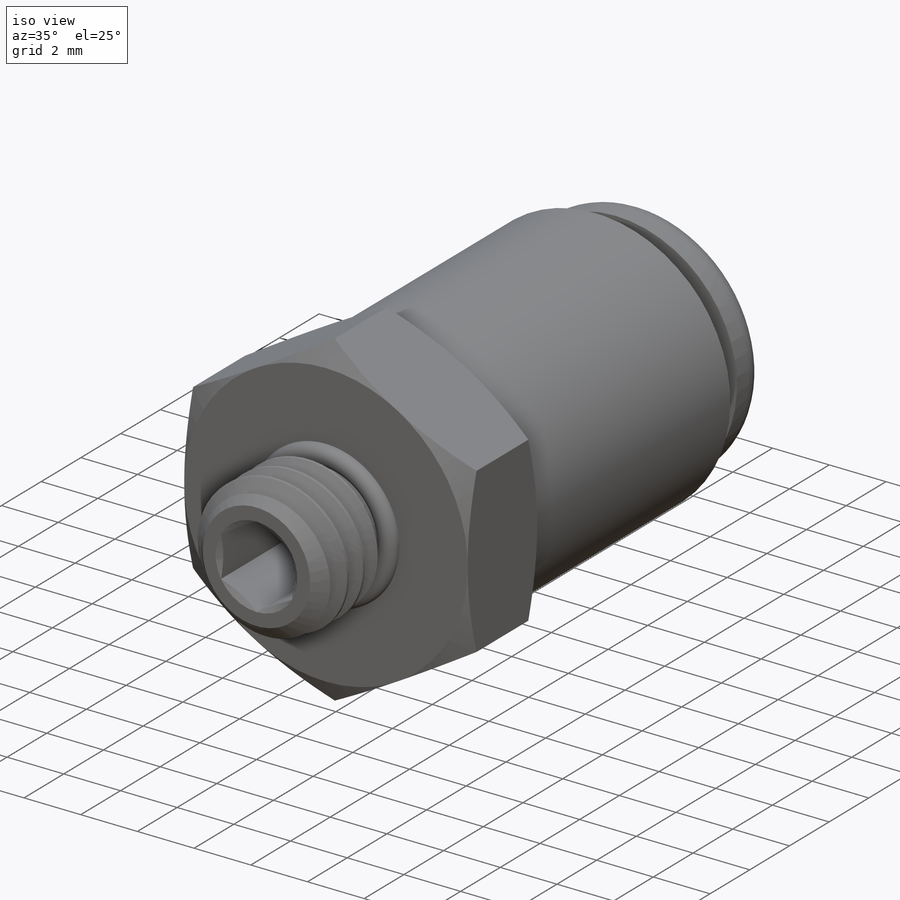
[diagram: iso view]
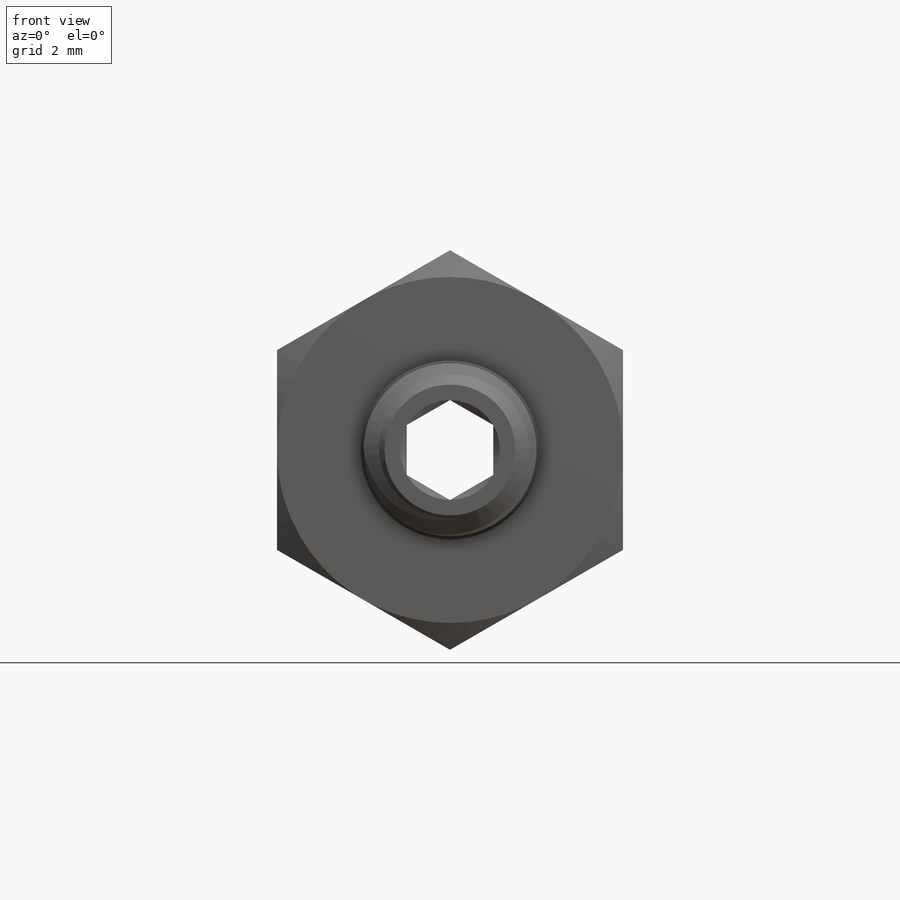
[diagram: front view]
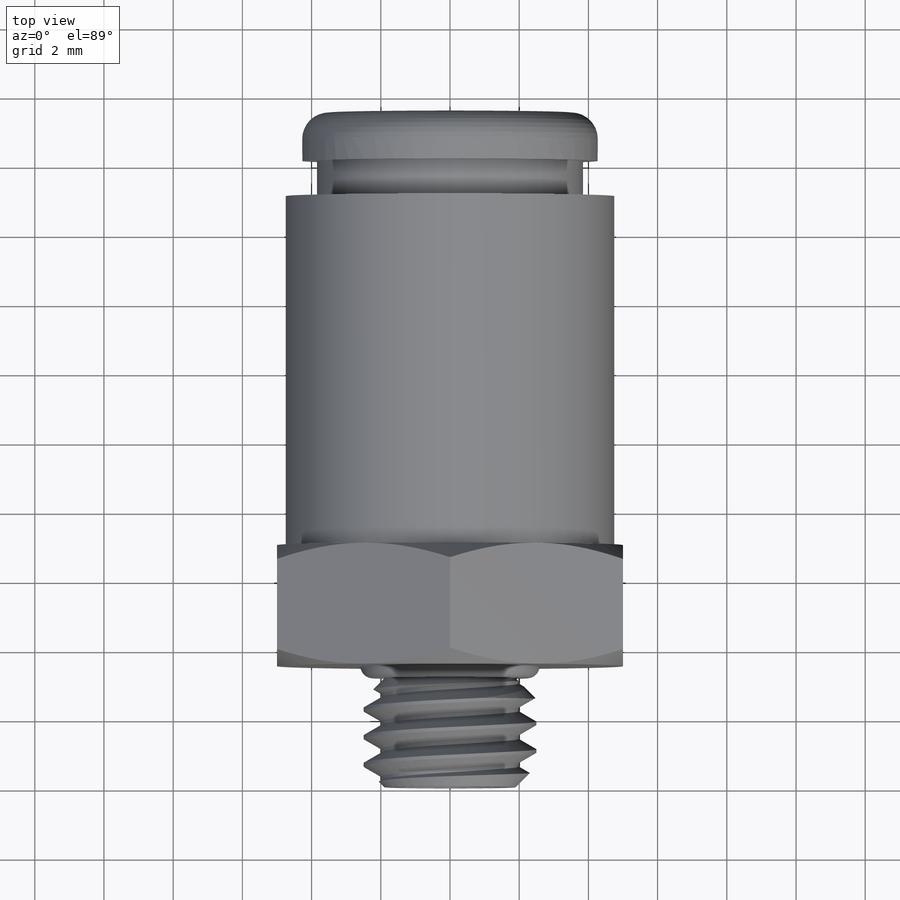
[diagram: top view]
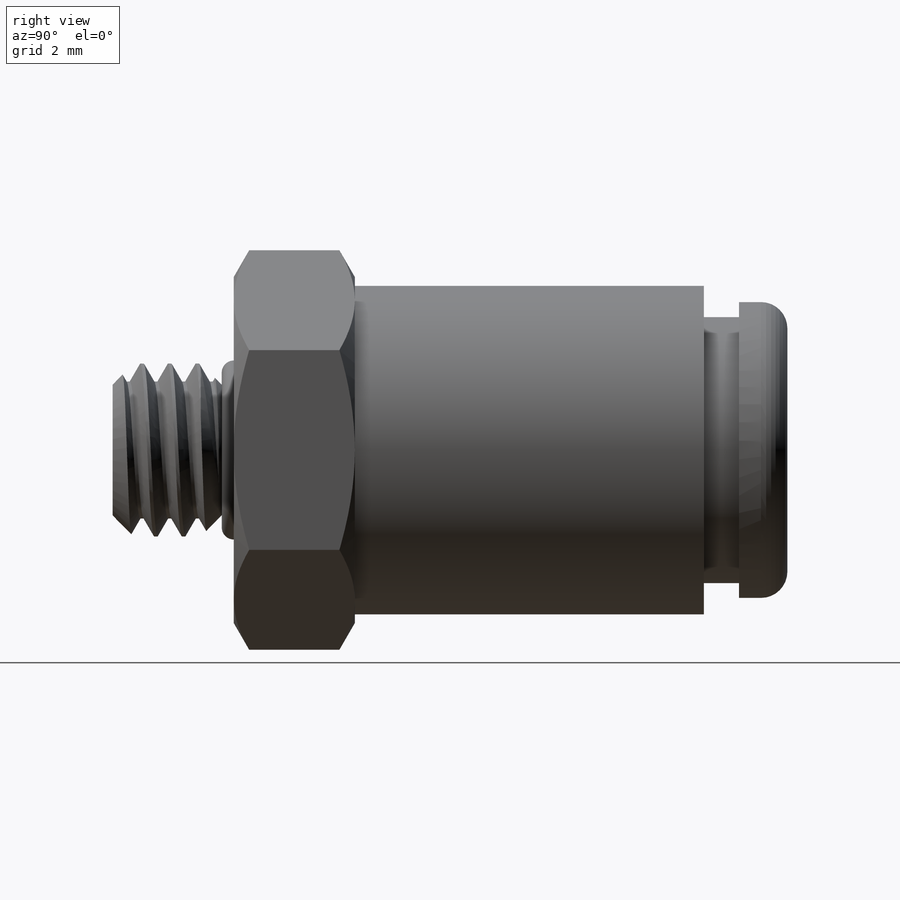
[diagram: right view]
SOLIDWORKS PART (.sldprt)
format: sldprt  version: not decoded by parser v0  size: 707,072 bytes
history: native  units: mm
features: sketch x13, cut_extrude x5, extrude x2, cut_revolve x2, revolve x2, material x1, helix x1, sweep x1 (+13 scaffold rows collapsed)
feature tree (40):
  scaffold x13  (default folders/planes/origin — collapsed)
  material  "Material <not specified>"
  sketch  "Sketch1"  dims[pipe od=5.0mm D1=~13.373514mm]
  extrude  "Extrude1"  Depth=3.5mm Thread length=3.5mm
  sketch  "Sketch2"
  helix  "Helix/Spiral1"  Pitch=4.3mm pitch=0.8mm
  sketch  "Sketch3"  dims[c1.D1=~3.36501mm c2.D1=60.0deg c2.D2=~0.160503mm c2.D3=~1.336842mm c2.D4=1.5875mm c3.D4=5.0deg c3.D1=~2.315478mm c4.D1=60.0deg c4.D3=0.8mm c4.D4=~0.69282mm c4.D2=~0.086603mm c4.D5=~0.091359mm]
  sweep  "Cut-Sweep1"
  sketch  "Sketch4"  dims[c1.D1=1.5875mm c2.D1=~1.783333deg c2.D2=~2.930708mm c3.D2=45.0deg c3.D3=~0.401053mm c3.D4=~1.418198mm c4.D4=45.0deg c4.D5=0.381mm c4.D6=~1.292008mm c4.D1=~10.755341mm c5.D1=~1.783333deg]
  cut_revolve  "Cut-Revolve1"  Angle=360deg
  sketch  "Sketch5"  dims[Hex Size=10.0mm]
  extrude  "Extrude2"  Depth=3.5mm
  sketch  "Sketch6"
  cut_extrude  "Cut-Extrude1"  [1 undecoded]
  sketch  "Sketch7"
  cut_extrude  "Cut-Extrude2"  [1 undecoded]
  sketch  "Sketch8"  dims[D4=0.762mm H=16.0mm tube od=6.0mm D1=1.397mm D2=1.016mm D3=7.695mm D5=9.5mm D6=8.55mm]
  revolve  "Revolve1"  Angle=360deg
  sketch  "Sketch9"  dims[F2=2.5mm D1=1.27mm]
  cut_extrude  "Cut-Extrude3"  [1 undecoded]
  sketch  "Sketch10"  dims[D1=0.0mm]
  cut_extrude  "Cut-Extrude4"  Depth=1mm
  sketch  "Sketch11"  dims[D1=1.016mm]
  cut_extrude  "Cut-Extrude5"  [1 undecoded]
  sketch  "Sketch12"
  cut_revolve  "Cut-Revolve2"  Angle=360deg
  sketch  "Sketch13"  dims[c1.D1=~0.642012mm c2.D1=45.0deg]
  revolve  "Revolve2"  Angle=360deg
decode coverage: 17 of 26 modeling features carry decoded parameters
note: ~ marks probable driven/reference dimensions
note: 4 parameter values undecoded
summary: no parameter record found for 4 features
note: suppression state not decoded; provenance and decode notes live in map.json
